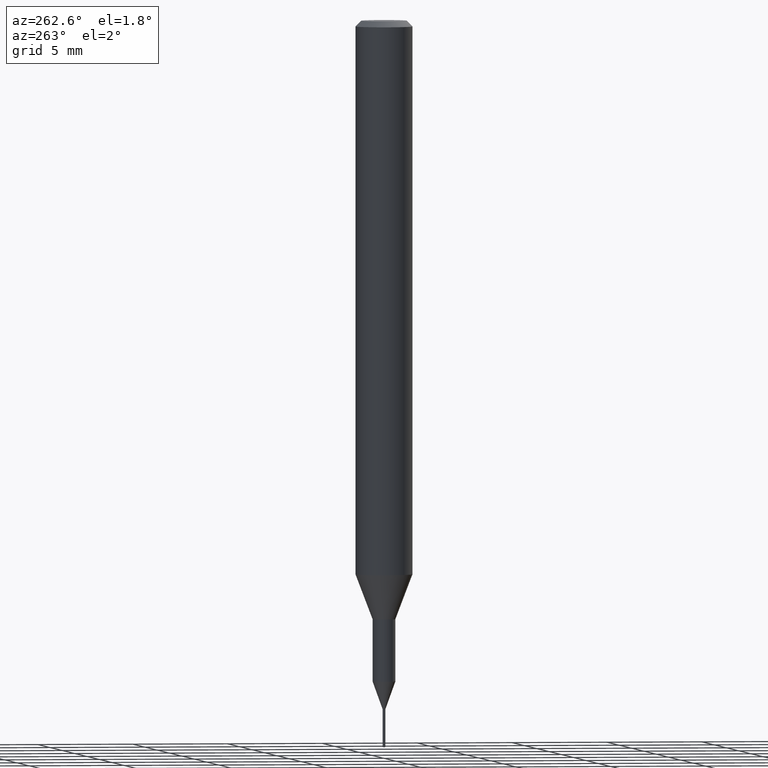
[diagram: clean part render]
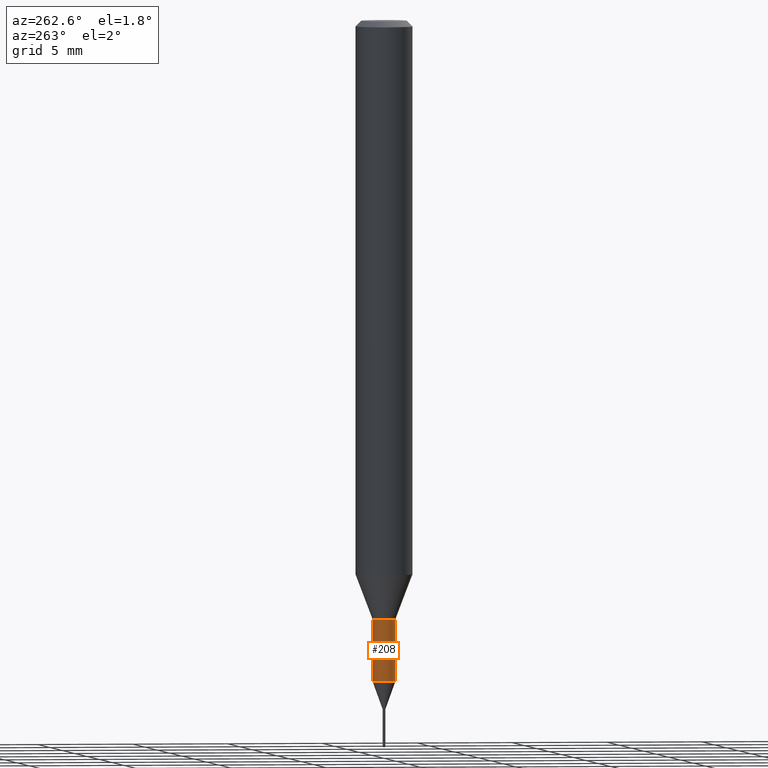
[diagram: same view with one face highlighted and labeled with its STEP entity id]
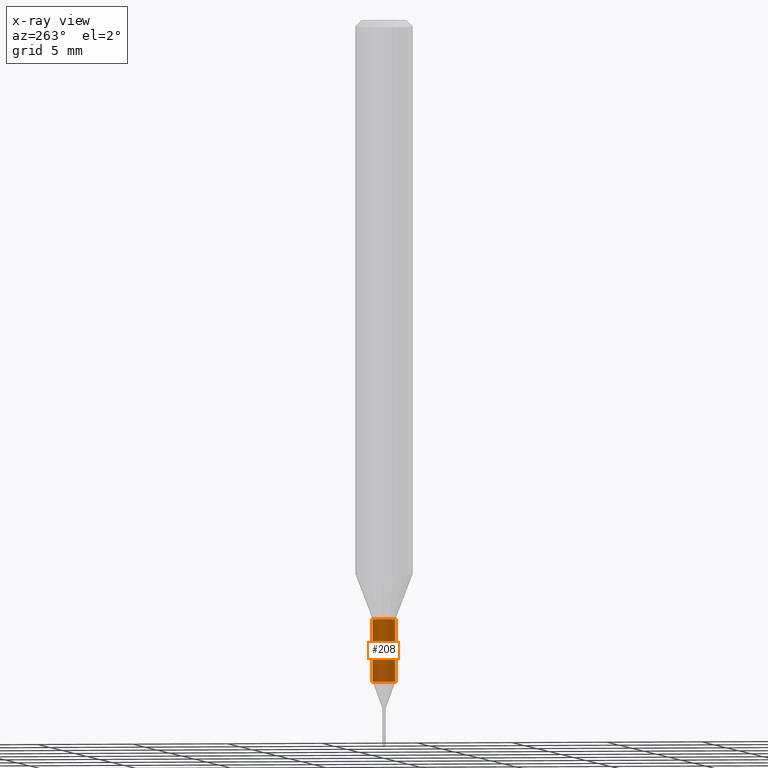
[diagram: x-ray of the same camera — body ghosted, the highlighted face saturated]
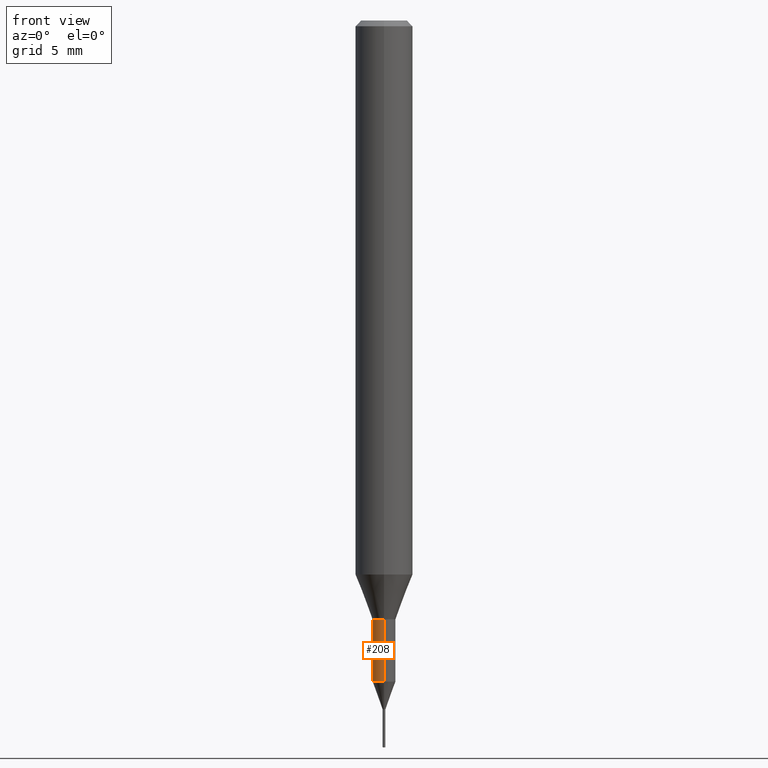
[diagram: same view with one face highlighted and labeled with its STEP entity id]
A machine part, auxiliary view. The second image highlights one B-rep face of the part: STEP entity #208.
The next image is the same camera in x-ray: the body ghosted, the highlighted face saturated — about 0% of this face is hidden behind the body in this view.
A second angle (front view) of the same face is appended — the face is thin or edge-on in the first view.
In plain terms, the highlighted cylindrical surface (edge-blend (fillet) strip) has radius 0.5999 mm, axis along (-0, -0, 1).
Its self-contained STEP definition (entity closure, byte-faithful):
#120=VERTEX_POINT('',#299);
#140=EDGE_CURVE('',#228,#120,#321,.T.);
#166=VERTEX_POINT('',#351);
#170=EDGE_CURVE('',#166,#120,#355,.T.);
#208=ADVANCED_FACE('',(#399),#400,.T.);
#214=VERTEX_POINT('',#407);
#228=VERTEX_POINT('',#421);
#232=EDGE_CURVE('',#214,#166,#425,.T.);
#244=EDGE_CURVE('',#228,#214,#438,.T.);
#299=CARTESIAN_POINT('',(0.0,0.59995,-34.558));
#321=CIRCLE('',#522,0.59995);
#351=CARTESIAN_POINT('',(0.0,0.59995,-31.3));
#355=LINE('',#564,#565);
#399=FACE_OUTER_BOUND('',#617,.T.);
#400=CYLINDRICAL_SURFACE('',#618,0.59995);
#407=CARTESIAN_POINT('',(7.34702581975735E-017,-0.59995,-31.3));
#421=CARTESIAN_POINT('',(7.34702581975735E-017,-0.59995,-34.558));
#425=CIRCLE('',#652,0.59995);
#438=LINE('',#669,#670);
#522=AXIS2_PLACEMENT_3D('',#755,#756,#757);
#564=CARTESIAN_POINT('',(-7.34702581975735E-017,0.59995,-32.929));
#565=VECTOR('',#790,1.0);
#617=EDGE_LOOP('',(#850,#851,#852,#853));
#618=AXIS2_PLACEMENT_3D('',#854,#855,#856);
#652=AXIS2_PLACEMENT_3D('',#877,#878,#879);
#669=CARTESIAN_POINT('',(7.34702581975735E-017,-0.59995,-32.929));
#670=VECTOR('',#891,1.0);
#755=CARTESIAN_POINT('',(0.0,0.0,-34.558));
#756=DIRECTION('',(0.0,0.0,-1.0));
#757=DIRECTION('',(0.0,1.0,0.0));
#790=DIRECTION('',(0.0,0.0,-1.0));
#850=ORIENTED_EDGE('',*,*,#170,.T.);
#851=ORIENTED_EDGE('',*,*,#140,.F.);
#852=ORIENTED_EDGE('',*,*,#244,.T.);
#853=ORIENTED_EDGE('',*,*,#232,.T.);
#854=CARTESIAN_POINT('',(0.0,0.0,-32.929));
#855=DIRECTION('',(-0.0,-0.0,1.0));
#856=DIRECTION('',(0.0,1.0,0.0));
#877=CARTESIAN_POINT('',(0.0,0.0,-31.3));
#878=DIRECTION('',(0.0,0.0,-1.0));
#879=DIRECTION('',(0.0,1.0,0.0));
#891=DIRECTION('',(-0.0,-0.0,1.0));